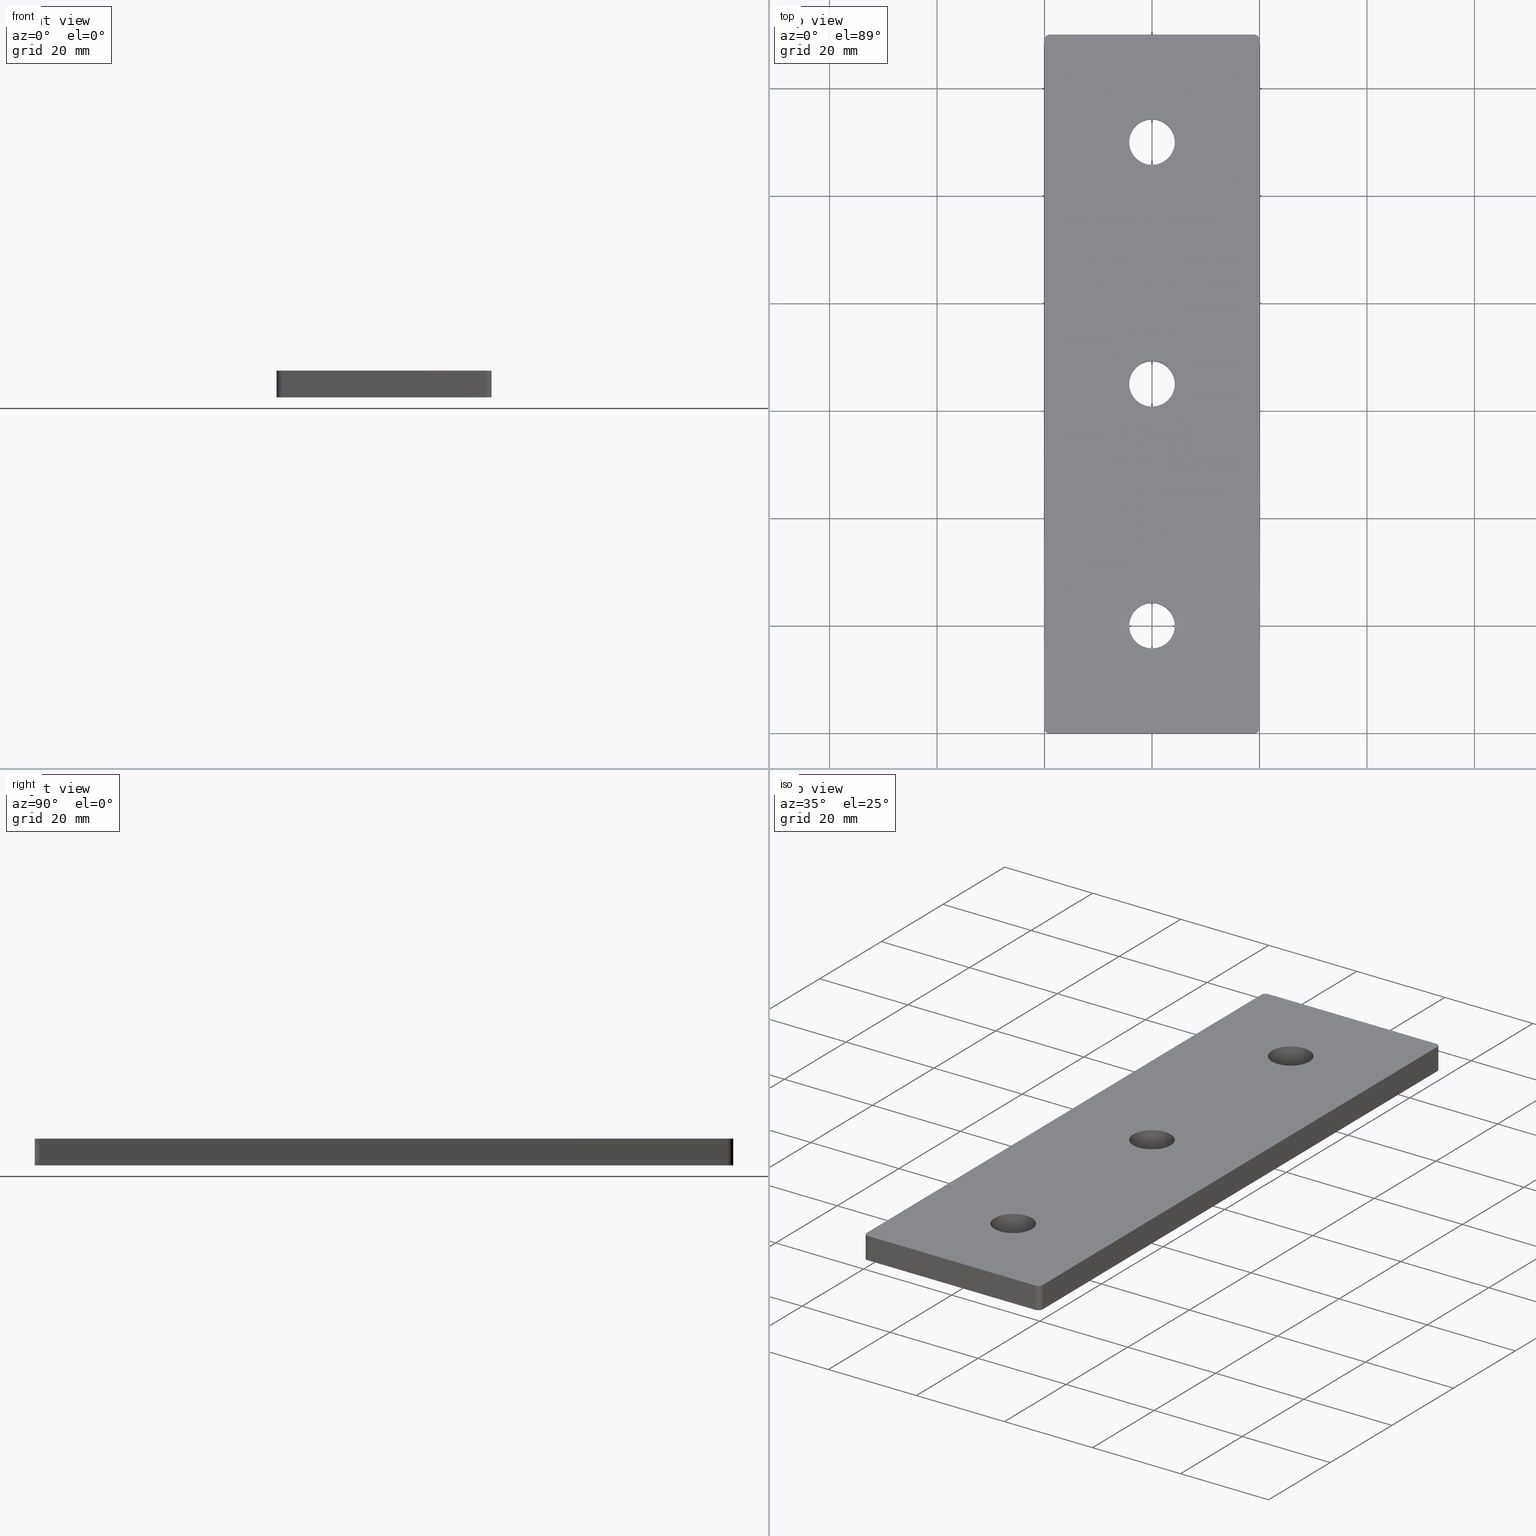
[diagram: canonical four-view strip — front | top / right | iso, engineering-drawing reading convention]
A machine part, canonical four-view strip (front | top / right | iso — engineering-drawing reading convention). The complete STEP part file that produces these views, byte-faithful:
ISO-10303-21;
HEADER;
/****************************************************************
 * Generated by software with PDE/Lib inside                    *
 * PDElib Version v4.4, created Mon 02/23/2004                  *
 * International Technegroup Inc. (www.iti-oh.com)              *
 ****************************************************************/
FILE_DESCRIPTION(('STEP AP203'),'2;1');
FILE_NAME('27.210.00.stp','2011-02-14T10:23:17',(''),(''),'2009.3.110','THINKDESIGN','');
FILE_SCHEMA(('CONFIG_CONTROL_DESIGN'));
ENDSEC;
DATA;
#2=CARTESIAN_POINT('',(0.0,109.999999999999990,5.000000010000000));
#3=DIRECTION('',(0.0,0.0,-1.0));
#4=DIRECTION('',(-1.0,0.0,0.0));
#5=AXIS2_PLACEMENT_3D('',#2,#3,#4);
#6=CYLINDRICAL_SURFACE('',#5,4.250000000000004);
#7=CARTESIAN_POINT('',(0.0,114.250000000000000,5.0));
#8=VERTEX_POINT('',#7);
#9=CARTESIAN_POINT('',(0.0,105.749999999999990,5.0));
#10=VERTEX_POINT('',#9);
#11=CARTESIAN_POINT('',(0.0,109.999999999999990,5.0));
#12=DIRECTION('',(0.0,0.0,-1.0));
#13=DIRECTION('',(0.0,-1.0,0.0));
#14=AXIS2_PLACEMENT_3D('',#11,#12,#13);
#15=CIRCLE('',#14,4.250000000000004);
#16=EDGE_CURVE('',#8,#10,#15,.T.);
#17=ORIENTED_EDGE('',*,*,#16,.F.);
#18=CARTESIAN_POINT('',(0.0,114.250000000000000,0.0));
#19=VERTEX_POINT('',#18);
#20=CARTESIAN_POINT('',(0.0,114.250000000000000,5.0));
#21=DIRECTION('',(0.0,0.0,-1.0));
#22=VECTOR('',#21,5.0);
#23=LINE('',#20,#22);
#24=EDGE_CURVE('',#8,#19,#23,.T.);
#25=ORIENTED_EDGE('',*,*,#24,.T.);
#26=CARTESIAN_POINT('',(0.0,105.749999999999990,0.0));
#27=VERTEX_POINT('',#26);
#28=CARTESIAN_POINT('',(0.0,109.999999999999990,0.0));
#29=DIRECTION('',(0.0,0.0,1.0));
#30=DIRECTION('',(1.0,0.0,0.0));
#31=AXIS2_PLACEMENT_3D('',#28,#29,#30);
#32=CIRCLE('',#31,4.250000000000004);
#33=EDGE_CURVE('',#27,#19,#32,.T.);
#34=ORIENTED_EDGE('',*,*,#33,.F.);
#35=CARTESIAN_POINT('',(0.0,105.749999999999990,5.0));
#36=DIRECTION('',(0.0,0.0,-1.0));
#37=VECTOR('',#36,5.0);
#38=LINE('',#35,#37);
#39=EDGE_CURVE('',#10,#27,#38,.T.);
#40=ORIENTED_EDGE('',*,*,#39,.F.);
#41=EDGE_LOOP('',(#17,#25,#34,#40));
#42=FACE_OUTER_BOUND('',#41,.T.);
#43=ADVANCED_FACE('',(#42),#6,.F.);
#44=CARTESIAN_POINT('',(0.0,20.000000000000014,5.000000010000000));
#45=DIRECTION('',(0.0,0.0,-1.0));
#46=DIRECTION('',(-1.0,0.0,0.0));
#47=AXIS2_PLACEMENT_3D('',#44,#45,#46);
#48=CYLINDRICAL_SURFACE('',#47,4.250000000000000);
#49=CARTESIAN_POINT('',(0.0,24.250000000000014,5.0));
#50=VERTEX_POINT('',#49);
#51=CARTESIAN_POINT('',(0.0,15.750000000000011,5.0));
#52=VERTEX_POINT('',#51);
#53=CARTESIAN_POINT('',(0.0,20.000000000000011,5.0));
#54=DIRECTION('',(0.0,0.0,-1.0));
#55=DIRECTION('',(0.0,-1.0,0.0));
#56=AXIS2_PLACEMENT_3D('',#53,#54,#55);
#57=CIRCLE('',#56,4.250000000000000);
#58=EDGE_CURVE('',#50,#52,#57,.T.);
#59=ORIENTED_EDGE('',*,*,#58,.F.);
#60=CARTESIAN_POINT('',(0.0,24.250000000000014,0.0));
#61=VERTEX_POINT('',#60);
#62=CARTESIAN_POINT('',(0.0,24.250000000000014,5.0));
#63=DIRECTION('',(0.0,0.0,-1.0));
#64=VECTOR('',#63,5.0);
#65=LINE('',#62,#64);
#66=EDGE_CURVE('',#50,#61,#65,.T.);
#67=ORIENTED_EDGE('',*,*,#66,.T.);
#68=CARTESIAN_POINT('',(0.0,15.750000000000011,0.0));
#69=VERTEX_POINT('',#68);
#70=CARTESIAN_POINT('',(0.0,20.000000000000011,0.0));
#71=DIRECTION('',(0.0,0.0,1.0));
#72=DIRECTION('',(1.0,0.0,0.0));
#73=AXIS2_PLACEMENT_3D('',#70,#71,#72);
#74=CIRCLE('',#73,4.250000000000004);
#75=EDGE_CURVE('',#69,#61,#74,.T.);
#76=ORIENTED_EDGE('',*,*,#75,.F.);
#77=CARTESIAN_POINT('',(0.0,15.750000000000011,5.0));
#78=DIRECTION('',(0.0,0.0,-1.0));
#79=VECTOR('',#78,5.0);
#80=LINE('',#77,#79);
#81=EDGE_CURVE('',#52,#69,#80,.T.);
#82=ORIENTED_EDGE('',*,*,#81,.F.);
#83=EDGE_LOOP('',(#59,#67,#76,#82));
#84=FACE_OUTER_BOUND('',#83,.T.);
#85=ADVANCED_FACE('',(#84),#48,.F.);
#86=CARTESIAN_POINT('',(0.0,65.0,5.000000010000000));
#87=DIRECTION('',(0.0,0.0,-1.0));
#88=DIRECTION('',(-1.0,0.0,0.0));
#89=AXIS2_PLACEMENT_3D('',#86,#87,#88);
#90=CYLINDRICAL_SURFACE('',#89,4.249999999999997);
#91=CARTESIAN_POINT('',(0.0,69.250000000000000,5.0));
#92=VERTEX_POINT('',#91);
#93=CARTESIAN_POINT('',(0.0,60.750000000000021,5.0));
#94=VERTEX_POINT('',#93);
#95=CARTESIAN_POINT('',(0.0,65.0,5.0));
#96=DIRECTION('',(0.0,0.0,-1.0));
#97=DIRECTION('',(0.0,-1.0,0.0));
#98=AXIS2_PLACEMENT_3D('',#95,#96,#97);
#99=CIRCLE('',#98,4.249999999999997);
#100=EDGE_CURVE('',#92,#94,#99,.T.);
#101=ORIENTED_EDGE('',*,*,#100,.F.);
#102=CARTESIAN_POINT('',(0.0,69.250000000000000,0.0));
#103=VERTEX_POINT('',#102);
#104=CARTESIAN_POINT('',(0.0,69.250000000000000,5.0));
#105=DIRECTION('',(0.0,0.0,-1.0));
#106=VECTOR('',#105,5.0);
#107=LINE('',#104,#106);
#108=EDGE_CURVE('',#92,#103,#107,.T.);
#109=ORIENTED_EDGE('',*,*,#108,.T.);
#110=CARTESIAN_POINT('',(0.0,60.750000000000021,0.0));
#111=VERTEX_POINT('',#110);
#112=CARTESIAN_POINT('',(0.0,65.0,0.0));
#113=DIRECTION('',(0.0,0.0,1.0));
#114=DIRECTION('',(1.0,0.0,0.0));
#115=AXIS2_PLACEMENT_3D('',#112,#113,#114);
#116=CIRCLE('',#115,4.250000000000004);
#117=EDGE_CURVE('',#111,#103,#116,.T.);
#118=ORIENTED_EDGE('',*,*,#117,.F.);
#119=CARTESIAN_POINT('',(0.0,60.750000000000021,5.0));
#120=DIRECTION('',(0.0,0.0,-1.0));
#121=VECTOR('',#120,5.0);
#122=LINE('',#119,#121);
#123=EDGE_CURVE('',#94,#111,#122,.T.);
#124=ORIENTED_EDGE('',*,*,#123,.F.);
#125=EDGE_LOOP('',(#101,#109,#118,#124));
#126=FACE_OUTER_BOUND('',#125,.T.);
#127=ADVANCED_FACE('',(#126),#90,.F.);
#128=CARTESIAN_POINT('',(-20.0,-5.400000000000000,-0.250000000000000));
#129=DIRECTION('',(-1.0,0.0,0.0));
#130=DIRECTION('',(0.0,0.0,1.0));
#131=AXIS2_PLACEMENT_3D('',#128,#129,#130);
#132=PLANE('',#131);
#133=CARTESIAN_POINT('',(-20.0,129.0,5.0));
#134=VERTEX_POINT('',#133);
#135=CARTESIAN_POINT('',(-20.0,1.000000000000002,5.0));
#136=VERTEX_POINT('',#135);
#137=CARTESIAN_POINT('',(-20.0,129.0,5.0));
#138=DIRECTION('',(0.0,-1.0,0.0));
#139=VECTOR('',#138,128.0);
#140=LINE('',#137,#139);
#141=EDGE_CURVE('',#134,#136,#140,.T.);
#142=ORIENTED_EDGE('',*,*,#141,.F.);
#143=CARTESIAN_POINT('',(-20.0,129.0,0.0));
#144=VERTEX_POINT('',#143);
#145=CARTESIAN_POINT('',(-20.0,129.0,5.0));
#146=DIRECTION('',(0.0,0.0,-1.0));
#147=VECTOR('',#146,5.0);
#148=LINE('',#145,#147);
#149=EDGE_CURVE('',#134,#144,#148,.T.);
#150=ORIENTED_EDGE('',*,*,#149,.T.);
#151=CARTESIAN_POINT('',(-20.0,1.000000000000002,0.0));
#152=VERTEX_POINT('',#151);
#153=CARTESIAN_POINT('',(-20.0,129.0,0.0));
#154=DIRECTION('',(0.0,-1.0,0.0));
#155=VECTOR('',#154,128.0);
#156=LINE('',#153,#155);
#157=EDGE_CURVE('',#144,#152,#156,.T.);
#158=ORIENTED_EDGE('',*,*,#157,.T.);
#159=CARTESIAN_POINT('',(-20.0,1.000000000000002,0.0));
#160=DIRECTION('',(0.0,0.0,1.0));
#161=VECTOR('',#160,5.0);
#162=LINE('',#159,#161);
#163=EDGE_CURVE('',#152,#136,#162,.T.);
#164=ORIENTED_EDGE('',*,*,#163,.T.);
#165=EDGE_LOOP('',(#142,#150,#158,#164));
#166=FACE_OUTER_BOUND('',#165,.T.);
#167=ADVANCED_FACE('',(#166),#132,.T.);
#168=CARTESIAN_POINT('',(-20.900000000000006,0.0,5.250000000000000));
#169=DIRECTION('',(0.0,-1.0,0.0));
#170=DIRECTION('',(0.0,0.0,-1.0));
#171=AXIS2_PLACEMENT_3D('',#168,#169,#170);
#172=PLANE('',#171);
#173=CARTESIAN_POINT('',(-19.0,0.0,0.0));
#174=VERTEX_POINT('',#173);
#175=CARTESIAN_POINT('',(19.000000000000014,0.0,0.0));
#176=VERTEX_POINT('',#175);
#177=CARTESIAN_POINT('',(-19.0,0.0,0.0));
#178=DIRECTION('',(1.0,0.0,0.0));
#179=VECTOR('',#178,38.000000000000014);
#180=LINE('',#177,#179);
#181=EDGE_CURVE('',#174,#176,#180,.T.);
#182=ORIENTED_EDGE('',*,*,#181,.T.);
#183=CARTESIAN_POINT('',(19.000000000000014,0.0,5.0));
#184=VERTEX_POINT('',#183);
#185=CARTESIAN_POINT('',(19.000000000000014,0.0,0.0));
#186=DIRECTION('',(0.0,0.0,1.0));
#187=VECTOR('',#186,5.0);
#188=LINE('',#185,#187);
#189=EDGE_CURVE('',#176,#184,#188,.T.);
#190=ORIENTED_EDGE('',*,*,#189,.T.);
#191=CARTESIAN_POINT('',(-19.0,0.0,5.0));
#192=VERTEX_POINT('',#191);
#193=CARTESIAN_POINT('',(-19.0,0.0,5.0));
#194=DIRECTION('',(1.0,0.0,0.0));
#195=VECTOR('',#194,38.000000000000014);
#196=LINE('',#193,#195);
#197=EDGE_CURVE('',#192,#184,#196,.T.);
#198=ORIENTED_EDGE('',*,*,#197,.F.);
#199=CARTESIAN_POINT('',(-19.0,0.0,5.0));
#200=DIRECTION('',(0.0,0.0,-1.0));
#201=VECTOR('',#200,5.0);
#202=LINE('',#199,#201);
#203=EDGE_CURVE('',#192,#174,#202,.T.);
#204=ORIENTED_EDGE('',*,*,#203,.T.);
#205=EDGE_LOOP('',(#182,#190,#198,#204));
#206=FACE_OUTER_BOUND('',#205,.T.);
#207=ADVANCED_FACE('',(#206),#172,.T.);
#208=CARTESIAN_POINT('',(20.000000000000014,-5.399999999999999,5.250000000000000));
#209=DIRECTION('',(1.0,0.0,0.0));
#210=DIRECTION('',(0.0,0.0,-1.0));
#211=AXIS2_PLACEMENT_3D('',#208,#209,#210);
#212=PLANE('',#211);
#213=CARTESIAN_POINT('',(20.000000000000014,1.000000000000002,5.0));
#214=VERTEX_POINT('',#213);
#215=CARTESIAN_POINT('',(20.000000000000014,129.0,5.0));
#216=VERTEX_POINT('',#215);
#217=CARTESIAN_POINT('',(20.000000000000014,1.000000000000002,5.0));
#218=DIRECTION('',(0.0,1.0,0.0));
#219=VECTOR('',#218,128.0);
#220=LINE('',#217,#219);
#221=EDGE_CURVE('',#214,#216,#220,.T.);
#222=ORIENTED_EDGE('',*,*,#221,.F.);
#223=CARTESIAN_POINT('',(20.000000000000014,1.000000000000002,0.0));
#224=VERTEX_POINT('',#223);
#225=CARTESIAN_POINT('',(20.000000000000014,1.000000000000002,5.0));
#226=DIRECTION('',(0.0,0.0,-1.0));
#227=VECTOR('',#226,5.0);
#228=LINE('',#225,#227);
#229=EDGE_CURVE('',#214,#224,#228,.T.);
#230=ORIENTED_EDGE('',*,*,#229,.T.);
#231=CARTESIAN_POINT('',(20.000000000000014,129.0,0.0));
#232=VERTEX_POINT('',#231);
#233=CARTESIAN_POINT('',(20.000000000000014,1.000000000000002,0.0));
#234=DIRECTION('',(0.0,1.0,0.0));
#235=VECTOR('',#234,128.0);
#236=LINE('',#233,#235);
#237=EDGE_CURVE('',#224,#232,#236,.T.);
#238=ORIENTED_EDGE('',*,*,#237,.T.);
#239=CARTESIAN_POINT('',(20.000000000000014,129.0,0.0));
#240=DIRECTION('',(0.0,0.0,1.0));
#241=VECTOR('',#240,5.0);
#242=LINE('',#239,#241);
#243=EDGE_CURVE('',#232,#216,#242,.T.);
#244=ORIENTED_EDGE('',*,*,#243,.T.);
#245=EDGE_LOOP('',(#222,#230,#238,#244));
#246=FACE_OUTER_BOUND('',#245,.T.);
#247=ADVANCED_FACE('',(#246),#212,.T.);
#248=CARTESIAN_POINT('',(-20.900000000000006,130.0,-0.250000000000000));
#249=DIRECTION('',(0.0,1.0,0.0));
#250=DIRECTION('',(0.0,0.0,1.0));
#251=AXIS2_PLACEMENT_3D('',#248,#249,#250);
#252=PLANE('',#251);
#253=CARTESIAN_POINT('',(19.000000000000014,130.0,0.0));
#254=VERTEX_POINT('',#253);
#255=CARTESIAN_POINT('',(-19.0,130.0,0.0));
#256=VERTEX_POINT('',#255);
#257=CARTESIAN_POINT('',(19.000000000000014,130.0,0.0));
#258=DIRECTION('',(-1.0,0.0,0.0));
#259=VECTOR('',#258,38.000000000000014);
#260=LINE('',#257,#259);
#261=EDGE_CURVE('',#254,#256,#260,.T.);
#262=ORIENTED_EDGE('',*,*,#261,.T.);
#263=CARTESIAN_POINT('',(-19.0,130.0,5.0));
#264=VERTEX_POINT('',#263);
#265=CARTESIAN_POINT('',(-19.0,130.0,0.0));
#266=DIRECTION('',(0.0,0.0,1.0));
#267=VECTOR('',#266,5.0);
#268=LINE('',#265,#267);
#269=EDGE_CURVE('',#256,#264,#268,.T.);
#270=ORIENTED_EDGE('',*,*,#269,.T.);
#271=CARTESIAN_POINT('',(19.000000000000014,130.0,5.0));
#272=VERTEX_POINT('',#271);
#273=CARTESIAN_POINT('',(19.000000000000014,130.0,5.0));
#274=DIRECTION('',(-1.0,0.0,0.0));
#275=VECTOR('',#274,38.000000000000014);
#276=LINE('',#273,#275);
#277=EDGE_CURVE('',#272,#264,#276,.T.);
#278=ORIENTED_EDGE('',*,*,#277,.F.);
#279=CARTESIAN_POINT('',(19.000000000000014,130.0,5.0));
#280=DIRECTION('',(0.0,0.0,-1.0));
#281=VECTOR('',#280,5.0);
#282=LINE('',#279,#281);
#283=EDGE_CURVE('',#272,#254,#282,.T.);
#284=ORIENTED_EDGE('',*,*,#283,.T.);
#285=EDGE_LOOP('',(#262,#270,#278,#284));
#286=FACE_OUTER_BOUND('',#285,.T.);
#287=ADVANCED_FACE('',(#286),#252,.T.);
#288=CARTESIAN_POINT('',(-22.0,-6.500000000000000,0.0));
#289=DIRECTION('',(0.0,0.0,1.0));
#290=DIRECTION('',(1.0,0.0,0.0));
#291=AXIS2_PLACEMENT_3D('',#288,#289,#290);
#292=PLANE('',#291);
#293=ORIENTED_EDGE('',*,*,#157,.F.);
#294=CARTESIAN_POINT('',(-19.0,129.0,0.0));
#295=DIRECTION('',(0.0,0.0,-1.0));
#296=DIRECTION('',(1.0,0.0,0.0));
#297=AXIS2_PLACEMENT_3D('',#294,#295,#296);
#298=CIRCLE('',#297,1.000000000000001);
#299=EDGE_CURVE('',#144,#256,#298,.T.);
#300=ORIENTED_EDGE('',*,*,#299,.T.);
#301=ORIENTED_EDGE('',*,*,#261,.F.);
#302=CARTESIAN_POINT('',(19.000000000000014,129.0,0.0));
#303=DIRECTION('',(0.0,0.0,-1.0));
#304=DIRECTION('',(1.0,0.0,0.0));
#305=AXIS2_PLACEMENT_3D('',#302,#303,#304);
#306=CIRCLE('',#305,1.000000000000001);
#307=EDGE_CURVE('',#254,#232,#306,.T.);
#308=ORIENTED_EDGE('',*,*,#307,.T.);
#309=ORIENTED_EDGE('',*,*,#237,.F.);
#310=CARTESIAN_POINT('',(19.000000000000014,1.000000000000002,0.0));
#311=DIRECTION('',(0.0,0.0,-1.0));
#312=DIRECTION('',(1.0,0.0,0.0));
#313=AXIS2_PLACEMENT_3D('',#310,#311,#312);
#314=CIRCLE('',#313,1.000000000000001);
#315=EDGE_CURVE('',#224,#176,#314,.T.);
#316=ORIENTED_EDGE('',*,*,#315,.T.);
#317=ORIENTED_EDGE('',*,*,#181,.F.);
#318=CARTESIAN_POINT('',(-19.0,1.000000000000002,0.0));
#319=DIRECTION('',(0.0,0.0,-1.0));
#320=DIRECTION('',(1.0,0.0,0.0));
#321=AXIS2_PLACEMENT_3D('',#318,#319,#320);
#322=CIRCLE('',#321,1.000000000000001);
#323=EDGE_CURVE('',#174,#152,#322,.T.);
#324=ORIENTED_EDGE('',*,*,#323,.T.);
#325=EDGE_LOOP('',(#293,#300,#301,#308,#309,#316,#317,#324));
#326=FACE_OUTER_BOUND('',#325,.T.);
#327=ORIENTED_EDGE('',*,*,#75,.T.);
#328=CARTESIAN_POINT('',(0.0,20.000000000000011,0.0));
#329=DIRECTION('',(0.0,0.0,1.0));
#330=DIRECTION('',(1.0,0.0,0.0));
#331=AXIS2_PLACEMENT_3D('',#328,#329,#330);
#332=CIRCLE('',#331,4.250000000000004);
#333=EDGE_CURVE('',#61,#69,#332,.T.);
#334=ORIENTED_EDGE('',*,*,#333,.T.);
#335=EDGE_LOOP('',(#327,#334));
#336=FACE_BOUND('',#335,.T.);
#337=ORIENTED_EDGE('',*,*,#117,.T.);
#338=CARTESIAN_POINT('',(0.0,65.0,0.0));
#339=DIRECTION('',(0.0,0.0,1.0));
#340=DIRECTION('',(1.0,0.0,0.0));
#341=AXIS2_PLACEMENT_3D('',#338,#339,#340);
#342=CIRCLE('',#341,4.250000000000004);
#343=EDGE_CURVE('',#103,#111,#342,.T.);
#344=ORIENTED_EDGE('',*,*,#343,.T.);
#345=EDGE_LOOP('',(#337,#344));
#346=FACE_BOUND('',#345,.T.);
#347=ORIENTED_EDGE('',*,*,#33,.T.);
#348=CARTESIAN_POINT('',(0.0,109.999999999999990,0.0));
#349=DIRECTION('',(0.0,0.0,1.0));
#350=DIRECTION('',(1.0,0.0,0.0));
#351=AXIS2_PLACEMENT_3D('',#348,#349,#350);
#352=CIRCLE('',#351,4.250000000000004);
#353=EDGE_CURVE('',#19,#27,#352,.T.);
#354=ORIENTED_EDGE('',*,*,#353,.T.);
#355=EDGE_LOOP('',(#347,#354));
#356=FACE_BOUND('',#355,.T.);
#357=ADVANCED_FACE('',(#326,#336,#346,#356),#292,.F.);
#358=CARTESIAN_POINT('',(-22.0,-6.500000000000000,5.0));
#359=DIRECTION('',(0.0,0.0,1.0));
#360=DIRECTION('',(1.0,0.0,0.0));
#361=AXIS2_PLACEMENT_3D('',#358,#359,#360);
#362=PLANE('',#361);
#363=ORIENTED_EDGE('',*,*,#277,.T.);
#364=CARTESIAN_POINT('',(-19.0,129.0,5.0));
#365=DIRECTION('',(0.0,0.0,1.0));
#366=DIRECTION('',(1.0,0.0,0.0));
#367=AXIS2_PLACEMENT_3D('',#364,#365,#366);
#368=CIRCLE('',#367,1.000000000000001);
#369=EDGE_CURVE('',#264,#134,#368,.T.);
#370=ORIENTED_EDGE('',*,*,#369,.T.);
#371=ORIENTED_EDGE('',*,*,#141,.T.);
#372=CARTESIAN_POINT('',(-19.0,1.000000000000002,5.0));
#373=DIRECTION('',(0.0,0.0,1.0));
#374=DIRECTION('',(1.0,0.0,0.0));
#375=AXIS2_PLACEMENT_3D('',#372,#373,#374);
#376=CIRCLE('',#375,1.000000000000001);
#377=EDGE_CURVE('',#136,#192,#376,.T.);
#378=ORIENTED_EDGE('',*,*,#377,.T.);
#379=ORIENTED_EDGE('',*,*,#197,.T.);
#380=CARTESIAN_POINT('',(19.000000000000014,1.000000000000002,5.0));
#381=DIRECTION('',(0.0,0.0,1.0));
#382=DIRECTION('',(1.0,0.0,0.0));
#383=AXIS2_PLACEMENT_3D('',#380,#381,#382);
#384=CIRCLE('',#383,1.000000000000001);
#385=EDGE_CURVE('',#184,#214,#384,.T.);
#386=ORIENTED_EDGE('',*,*,#385,.T.);
#387=ORIENTED_EDGE('',*,*,#221,.T.);
#388=CARTESIAN_POINT('',(19.000000000000014,129.0,5.0));
#389=DIRECTION('',(0.0,0.0,1.0));
#390=DIRECTION('',(1.0,0.0,0.0));
#391=AXIS2_PLACEMENT_3D('',#388,#389,#390);
#392=CIRCLE('',#391,1.000000000000001);
#393=EDGE_CURVE('',#216,#272,#392,.T.);
#394=ORIENTED_EDGE('',*,*,#393,.T.);
#395=EDGE_LOOP('',(#363,#370,#371,#378,#379,#386,#387,#394));
#396=FACE_OUTER_BOUND('',#395,.T.);
#397=CARTESIAN_POINT('',(0.0,20.000000000000011,5.0));
#398=DIRECTION('',(0.0,0.0,-1.0));
#399=DIRECTION('',(0.0,-1.0,0.0));
#400=AXIS2_PLACEMENT_3D('',#397,#398,#399);
#401=CIRCLE('',#400,4.250000000000000);
#402=EDGE_CURVE('',#52,#50,#401,.T.);
#403=ORIENTED_EDGE('',*,*,#402,.T.);
#404=ORIENTED_EDGE('',*,*,#58,.T.);
#405=EDGE_LOOP('',(#403,#404));
#406=FACE_BOUND('',#405,.T.);
#407=CARTESIAN_POINT('',(0.0,65.0,5.0));
#408=DIRECTION('',(0.0,0.0,-1.0));
#409=DIRECTION('',(0.0,-1.0,0.0));
#410=AXIS2_PLACEMENT_3D('',#407,#408,#409);
#411=CIRCLE('',#410,4.249999999999997);
#412=EDGE_CURVE('',#94,#92,#411,.T.);
#413=ORIENTED_EDGE('',*,*,#412,.T.);
#414=ORIENTED_EDGE('',*,*,#100,.T.);
#415=EDGE_LOOP('',(#413,#414));
#416=FACE_BOUND('',#415,.T.);
#417=CARTESIAN_POINT('',(0.0,109.999999999999990,5.0));
#418=DIRECTION('',(0.0,0.0,-1.0));
#419=DIRECTION('',(0.0,-1.0,0.0));
#420=AXIS2_PLACEMENT_3D('',#417,#418,#419);
#421=CIRCLE('',#420,4.250000000000004);
#422=EDGE_CURVE('',#10,#8,#421,.T.);
#423=ORIENTED_EDGE('',*,*,#422,.T.);
#424=ORIENTED_EDGE('',*,*,#16,.T.);
#425=EDGE_LOOP('',(#423,#424));
#426=FACE_BOUND('',#425,.T.);
#427=ADVANCED_FACE('',(#396,#406,#416,#426),#362,.T.);
#428=CARTESIAN_POINT('',(0.0,64.999999999999986,5.000000010000000));
#429=DIRECTION('',(0.0,0.0,-1.0));
#430=DIRECTION('',(1.0,0.0,0.0));
#431=AXIS2_PLACEMENT_3D('',#428,#429,#430);
#432=CYLINDRICAL_SURFACE('',#431,4.249999999999997);
#433=ORIENTED_EDGE('',*,*,#108,.F.);
#434=ORIENTED_EDGE('',*,*,#412,.F.);
#435=ORIENTED_EDGE('',*,*,#123,.T.);
#436=ORIENTED_EDGE('',*,*,#343,.F.);
#437=EDGE_LOOP('',(#433,#434,#435,#436));
#438=FACE_OUTER_BOUND('',#437,.T.);
#439=ADVANCED_FACE('',(#438),#432,.F.);
#440=CARTESIAN_POINT('',(0.0,20.000000000000007,5.000000010000000));
#441=DIRECTION('',(0.0,0.0,-1.0));
#442=DIRECTION('',(1.0,0.0,0.0));
#443=AXIS2_PLACEMENT_3D('',#440,#441,#442);
#444=CYLINDRICAL_SURFACE('',#443,4.250000000000000);
#445=ORIENTED_EDGE('',*,*,#66,.F.);
#446=ORIENTED_EDGE('',*,*,#402,.F.);
#447=ORIENTED_EDGE('',*,*,#81,.T.);
#448=ORIENTED_EDGE('',*,*,#333,.F.);
#449=EDGE_LOOP('',(#445,#446,#447,#448));
#450=FACE_OUTER_BOUND('',#449,.T.);
#451=ADVANCED_FACE('',(#450),#444,.F.);
#452=CARTESIAN_POINT('',(0.0,109.999999999999990,5.000000010000000));
#453=DIRECTION('',(0.0,0.0,-1.0));
#454=DIRECTION('',(1.0,0.0,0.0));
#455=AXIS2_PLACEMENT_3D('',#452,#453,#454);
#456=CYLINDRICAL_SURFACE('',#455,4.250000000000004);
#457=ORIENTED_EDGE('',*,*,#24,.F.);
#458=ORIENTED_EDGE('',*,*,#422,.F.);
#459=ORIENTED_EDGE('',*,*,#39,.T.);
#460=ORIENTED_EDGE('',*,*,#353,.F.);
#461=EDGE_LOOP('',(#457,#458,#459,#460));
#462=FACE_OUTER_BOUND('',#461,.T.);
#463=ADVANCED_FACE('',(#462),#456,.F.);
#464=CARTESIAN_POINT('',(-19.0,1.000000000000002,-1.000000E-008));
#465=DIRECTION('',(0.0,0.0,1.0));
#466=DIRECTION('',(1.0,0.0,0.0));
#467=AXIS2_PLACEMENT_3D('',#464,#465,#466);
#468=CYLINDRICAL_SURFACE('',#467,1.000000000000001);
#469=ORIENTED_EDGE('',*,*,#323,.F.);
#470=ORIENTED_EDGE('',*,*,#203,.F.);
#471=ORIENTED_EDGE('',*,*,#377,.F.);
#472=ORIENTED_EDGE('',*,*,#163,.F.);
#473=EDGE_LOOP('',(#469,#470,#471,#472));
#474=FACE_OUTER_BOUND('',#473,.T.);
#475=ADVANCED_FACE('',(#474),#468,.T.);
#476=CARTESIAN_POINT('',(19.0,129.0,-1.000000E-008));
#477=DIRECTION('',(0.0,0.0,1.0));
#478=DIRECTION('',(-0.707106781186547,-0.707106781186548,0.0));
#479=AXIS2_PLACEMENT_3D('',#476,#477,#478);
#480=CYLINDRICAL_SURFACE('',#479,1.000000000000001);
#481=ORIENTED_EDGE('',*,*,#307,.F.);
#482=ORIENTED_EDGE('',*,*,#283,.F.);
#483=ORIENTED_EDGE('',*,*,#393,.F.);
#484=ORIENTED_EDGE('',*,*,#243,.F.);
#485=EDGE_LOOP('',(#481,#482,#483,#484));
#486=FACE_OUTER_BOUND('',#485,.T.);
#487=ADVANCED_FACE('',(#486),#480,.T.);
#488=CARTESIAN_POINT('',(19.000000000000014,1.000000000000002,-1.000000E-008));
#489=DIRECTION('',(0.0,0.0,1.0));
#490=DIRECTION('',(-0.707106781186547,0.707106781186548,0.0));
#491=AXIS2_PLACEMENT_3D('',#488,#489,#490);
#492=CYLINDRICAL_SURFACE('',#491,1.000000000000001);
#493=ORIENTED_EDGE('',*,*,#315,.F.);
#494=ORIENTED_EDGE('',*,*,#229,.F.);
#495=ORIENTED_EDGE('',*,*,#385,.F.);
#496=ORIENTED_EDGE('',*,*,#189,.F.);
#497=EDGE_LOOP('',(#493,#494,#495,#496));
#498=FACE_OUTER_BOUND('',#497,.T.);
#499=ADVANCED_FACE('',(#498),#492,.T.);
#500=CARTESIAN_POINT('',(-19.0,129.0,-1.000000E-008));
#501=DIRECTION('',(0.0,0.0,1.0));
#502=DIRECTION('',(1.0,0.0,0.0));
#503=AXIS2_PLACEMENT_3D('',#500,#501,#502);
#504=CYLINDRICAL_SURFACE('',#503,1.000000000000001);
#505=ORIENTED_EDGE('',*,*,#299,.F.);
#506=ORIENTED_EDGE('',*,*,#149,.F.);
#507=ORIENTED_EDGE('',*,*,#369,.F.);
#508=ORIENTED_EDGE('',*,*,#269,.F.);
#509=EDGE_LOOP('',(#505,#506,#507,#508));
#510=FACE_OUTER_BOUND('',#509,.T.);
#511=ADVANCED_FACE('',(#510),#504,.T.);
#512=CLOSED_SHELL('',(#43,#85,#127,#167,#207,#247,#287,#357,#427,#439,#451,#463,#475,#487,#499,#511));
#513=MANIFOLD_SOLID_BREP('Importato1',#512);
#519=(NAMED_UNIT(*)PLANE_ANGLE_UNIT()SI_UNIT($,.RADIAN.));
#520=DIMENSIONAL_EXPONENTS(0.0,0.0,0.0,0.0,0.0,0.0,0.0);
#521=PLANE_ANGLE_MEASURE_WITH_UNIT(PLANE_ANGLE_MEASURE(0.017453292500000),#519);
#525=(CONVERSION_BASED_UNIT('DEGREE',#521)NAMED_UNIT(#520)PLANE_ANGLE_UNIT());
#529=(NAMED_UNIT(*)SI_UNIT($,.STERADIAN.)SOLID_ANGLE_UNIT());
#533=(LENGTH_UNIT()NAMED_UNIT(*)SI_UNIT(.MILLI.,.METRE.));
#535=UNCERTAINTY_MEASURE_WITH_UNIT(LENGTH_MEASURE(0.001000000000000),#533,'DISTANCE_ACCURACY_VALUE','');
#537=(GEOMETRIC_REPRESENTATION_CONTEXT(3)GLOBAL_UNCERTAINTY_ASSIGNED_CONTEXT((#535))GLOBAL_UNIT_ASSIGNED_CONTEXT((#525,#529,#533))REPRESENTATION_CONTEXT('thinkdesign','2009.3.110'));
#538=ADVANCED_BREP_SHAPE_REPRESENTATION('',(#513),#537);
#539=APPLICATION_CONTEXT('configuration controlled 3D designs of mechanical parts and assemblies');
#540=APPLICATION_PROTOCOL_DEFINITION('International Standard','config_control_design',1995,#539);
#541=MECHANICAL_CONTEXT('None',#539,'mechanical');
#542=PRODUCT('None','None','None',(#541));
#543=PRODUCT_RELATED_PRODUCT_CATEGORY('detail',$,(#542));
#544=PRODUCT_CATEGORY('part',$);
#545=PRODUCT_CATEGORY_RELATIONSHIP('None','None',#544,#543);
#546=PERSON('PERSON1','None','None',$,$,$);
#547=ORGANIZATION('','None','None');
#548=PERSON_AND_ORGANIZATION(#546,#547);
#549=PERSON_AND_ORGANIZATION_ROLE('design_owner');
#550=CC_DESIGN_PERSON_AND_ORGANIZATION_ASSIGNMENT(#548,#549,(#542));
#551=PRODUCT_DEFINITION_FORMATION_WITH_SPECIFIED_SOURCE('None','None',#542,.NOT_KNOWN.);
#552=PERSON('PERSON2','None','None',$,$,$);
#553=ORGANIZATION('','None','None');
#554=PERSON_AND_ORGANIZATION(#552,#553);
#555=PERSON_AND_ORGANIZATION_ROLE('creator');
#556=CC_DESIGN_PERSON_AND_ORGANIZATION_ASSIGNMENT(#554,#555,(#551));
#557=PERSON('PERSON3','None','None',$,$,$);
#558=ORGANIZATION('','None','None');
#559=PERSON_AND_ORGANIZATION(#557,#558);
#560=PERSON_AND_ORGANIZATION_ROLE('part_supplier');
#561=CC_DESIGN_PERSON_AND_ORGANIZATION_ASSIGNMENT(#559,#560,(#551));
#562=APPROVAL_STATUS('approved');
#563=APPROVAL(#562,'None');
#564=PERSON('PERSON4','None','None',$,$,$);
#565=ORGANIZATION('','None','None');
#566=PERSON_AND_ORGANIZATION(#564,#565);
#567=APPROVAL_ROLE('None');
#568=APPROVAL_PERSON_ORGANIZATION(#566,#563,#567);
#569=CALENDAR_DATE(2011,14,2);
#570=COORDINATED_UNIVERSAL_TIME_OFFSET(0,0,.AHEAD.);
#571=LOCAL_TIME(10,23,17.0,#570);
#572=DATE_AND_TIME(#569,#571);
#573=APPROVAL_DATE_TIME(#572,#563);
#574=CC_DESIGN_APPROVAL(#563,(#551));
#575=SECURITY_CLASSIFICATION_LEVEL('unclassified');
#576=SECURITY_CLASSIFICATION('None','None',#575);
#577=CC_DESIGN_SECURITY_CLASSIFICATION(#576,(#551));
#578=APPROVAL_STATUS('approved');
#579=APPROVAL(#578,'None');
#580=PERSON('PERSON5','None','None',$,$,$);
#581=ORGANIZATION('','None','None');
#582=PERSON_AND_ORGANIZATION(#580,#581);
#583=APPROVAL_ROLE('None');
#584=APPROVAL_PERSON_ORGANIZATION(#582,#579,#583);
#585=CALENDAR_DATE(2011,14,2);
#586=COORDINATED_UNIVERSAL_TIME_OFFSET(0,0,.AHEAD.);
#587=LOCAL_TIME(10,23,17.0,#586);
#588=DATE_AND_TIME(#585,#587);
#589=APPROVAL_DATE_TIME(#588,#579);
#590=CC_DESIGN_APPROVAL(#579,(#576));
#591=PERSON('PERSON6','None','None',$,$,$);
#592=ORGANIZATION('','None','None');
#593=PERSON_AND_ORGANIZATION(#591,#592);
#594=PERSON_AND_ORGANIZATION_ROLE('classification_officer');
#595=CC_DESIGN_PERSON_AND_ORGANIZATION_ASSIGNMENT(#593,#594,(#576));
#596=DATE_TIME_ROLE('classification_date');
#597=CALENDAR_DATE(2011,14,2);
#598=COORDINATED_UNIVERSAL_TIME_OFFSET(0,0,.AHEAD.);
#599=LOCAL_TIME(10,23,17.0,#598);
#600=DATE_AND_TIME(#597,#599);
#601=CC_DESIGN_DATE_AND_TIME_ASSIGNMENT(#600,#596,(#576));
#602=DESIGN_CONTEXT('part definition',#539,'design');
#603=DOCUMENT_TYPE('cad_filename');
#604=DOCUMENT('None','None','None',#603);
#605=PRODUCT_DEFINITION_WITH_ASSOCIATED_DOCUMENTS('None','None',#551,#602,(#604));
#606=PERSON('PERSON7','None','None',$,$,$);
#607=ORGANIZATION('','None','None');
#608=PERSON_AND_ORGANIZATION(#606,#607);
#609=PERSON_AND_ORGANIZATION_ROLE('creator');
#610=CC_DESIGN_PERSON_AND_ORGANIZATION_ASSIGNMENT(#608,#609,(#605));
#611=DATE_TIME_ROLE('creation_date');
#612=CALENDAR_DATE(2011,14,2);
#613=COORDINATED_UNIVERSAL_TIME_OFFSET(0,0,.AHEAD.);
#614=LOCAL_TIME(10,23,17.0,#613);
#615=DATE_AND_TIME(#612,#614);
#616=CC_DESIGN_DATE_AND_TIME_ASSIGNMENT(#615,#611,(#605));
#617=APPROVAL_STATUS('approved');
#618=APPROVAL(#617,'None');
#619=PERSON('PERSON8','None','None',$,$,$);
#620=ORGANIZATION('','None','None');
#621=PERSON_AND_ORGANIZATION(#619,#620);
#622=APPROVAL_ROLE('None');
#623=APPROVAL_PERSON_ORGANIZATION(#621,#618,#622);
#624=CALENDAR_DATE(2011,14,2);
#625=COORDINATED_UNIVERSAL_TIME_OFFSET(0,0,.AHEAD.);
#626=LOCAL_TIME(10,23,17.0,#625);
#627=DATE_AND_TIME(#624,#626);
#628=APPROVAL_DATE_TIME(#627,#618);
#629=CC_DESIGN_APPROVAL(#618,(#605));
#630=PRODUCT_DEFINITION_SHAPE('None','None',#605);
#631=SHAPE_DEFINITION_REPRESENTATION(#630,#538);
#632=DIMENSIONAL_EXPONENTS(0.0,0.0,0.0,0.0,0.0,0.0,0.0);
#633=DIMENSIONAL_EXPONENTS(1.0,0.0,0.0,0.0,0.0,0.0,0.0);
ENDSEC;
END-ISO-10303-21;
